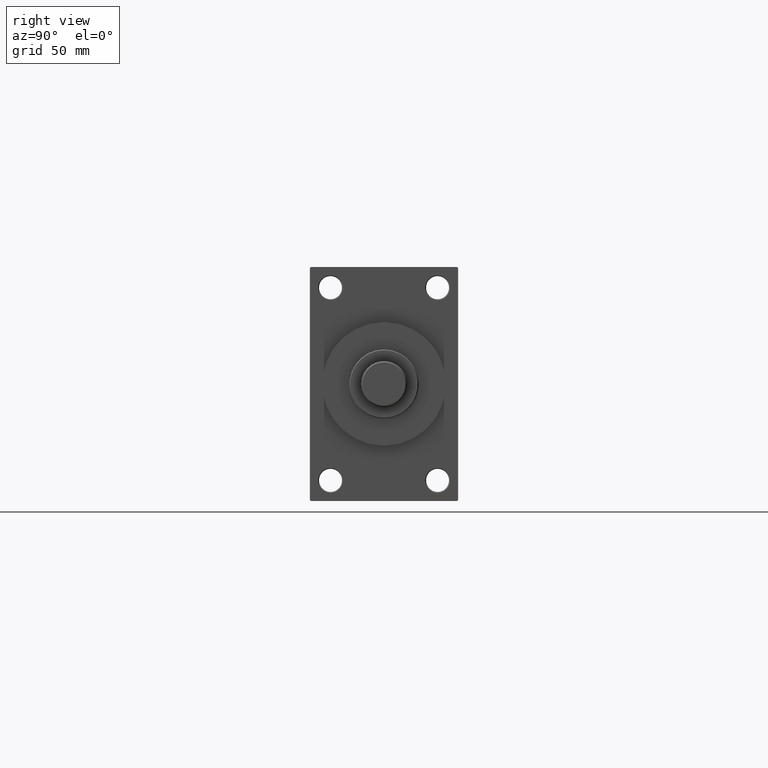
[diagram: clean part render]
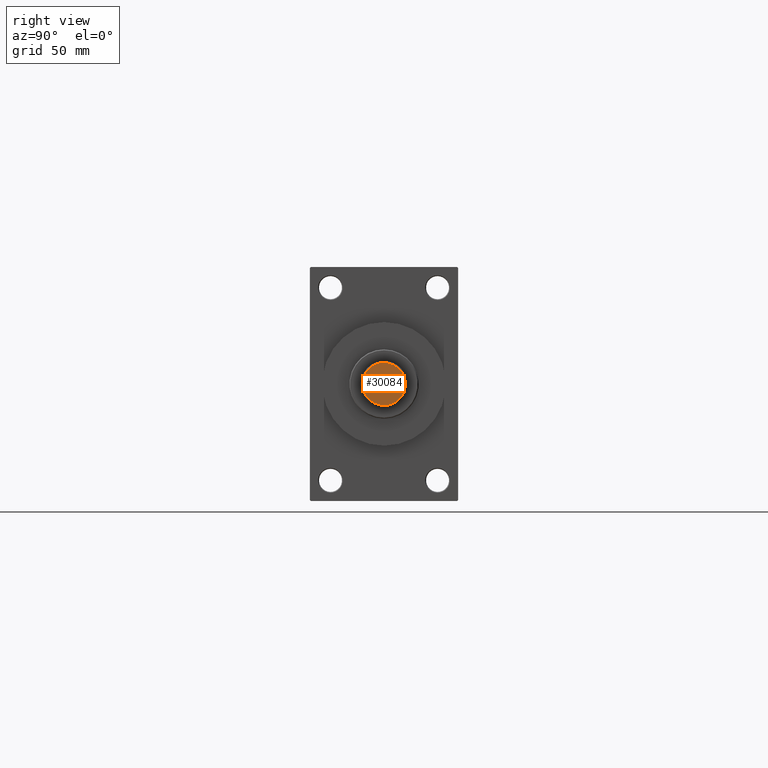
[diagram: same view with one face highlighted and labeled with its STEP entity id]
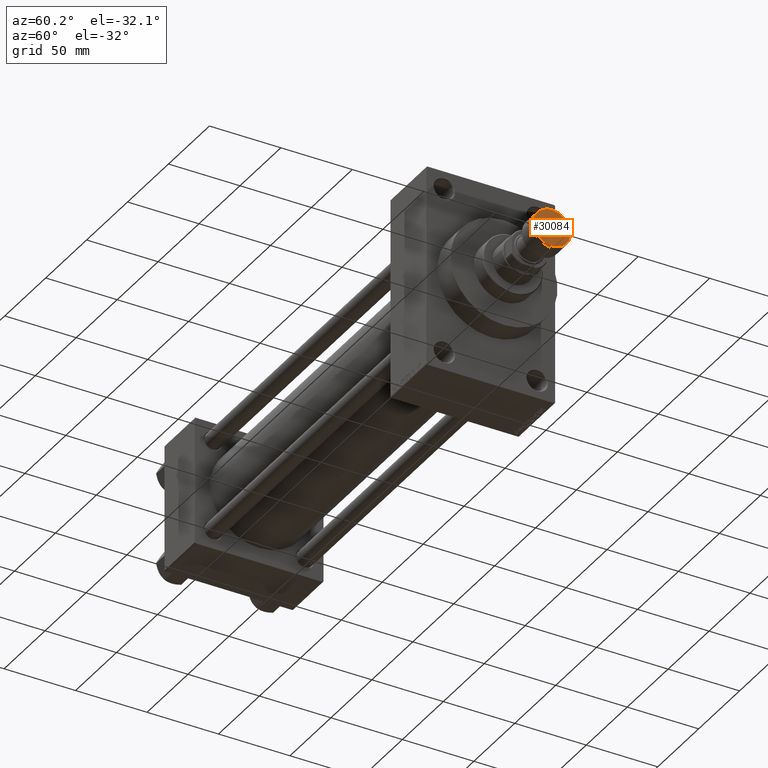
[diagram: same view with one face highlighted and labeled with its STEP entity id]
A machine part, right view. The second image highlights one B-rep face of the part: STEP entity #30084.
A second angle (auxiliary view) of the same face is appended — the face is thin or edge-on in the first view.
In plain terms, the highlighted planar face has unit normal (1, 0, 0).
Its self-contained STEP definition (entity closure, byte-faithful):
#198 = DIRECTION ( 'NONE',  ( 0.000000000000000000, 0.000000000000000000, 1.000000000000000000 ) ) ;
#1244 = EDGE_CURVE ( 'NONE', #34592, #35654, #36176, .T. ) ;
#4264 = CARTESIAN_POINT ( 'NONE',  ( 0.000000000000000000, 0.000000000000000000, 0.000000000000000000 ) ) ;
#6031 = EDGE_CURVE ( 'NONE', #35654, #34592, #16940, .T. ) ;
#6107 = DIRECTION ( 'NONE',  ( 0.000000000000000000, 0.000000000000000000, 1.000000000000000000 ) ) ;
#7360 = ORIENTED_EDGE ( 'NONE', *, *, #1244, .T. ) ;
#11827 = CARTESIAN_POINT ( 'NONE',  ( 13.00000000000000000, 0.000000000000000000, 0.000000000000000000 ) ) ;
#15240 = AXIS2_PLACEMENT_3D ( 'NONE', #24411, #6107, #23955 ) ;
#16940 = CIRCLE ( 'NONE', #31574, 13.00000000000000000 ) ;
#18476 = DIRECTION ( 'NONE',  ( 1.000000000000000000, 0.000000000000000000, -0.000000000000000000 ) ) ;
#20699 = AXIS2_PLACEMENT_3D ( 'NONE', #4264, #198, #18476 ) ;
#23955 = DIRECTION ( 'NONE',  ( 1.000000000000000000, 0.000000000000000000, 0.000000000000000000 ) ) ;
#24411 = CARTESIAN_POINT ( 'NONE',  ( 0.000000000000000000, 0.000000000000000000, 0.000000000000000000 ) ) ;
#24753 = ORIENTED_EDGE ( 'NONE', *, *, #6031, .T. ) ;
#25920 = DIRECTION ( 'NONE',  ( 1.000000000000000000, 0.000000000000000000, 0.000000000000000000 ) ) ;
#26665 = PLANE ( 'NONE',  #20699 ) ;
#29791 = FACE_OUTER_BOUND ( 'NONE', #40173, .T. ) ;
#30084 = ADVANCED_FACE ( 'NONE', ( #29791 ), #26665, .T. ) ;
#31574 = AXIS2_PLACEMENT_3D ( 'NONE', #36339, #40426, #25920 ) ;
#31973 = CARTESIAN_POINT ( 'NONE',  ( -13.00000000000000000, 1.622657008870242882E-15, 0.000000000000000000 ) ) ;
#34592 = VERTEX_POINT ( 'NONE', #31973 ) ;
#35654 = VERTEX_POINT ( 'NONE', #11827 ) ;
#36176 = CIRCLE ( 'NONE', #15240, 13.00000000000000000 ) ;
#36339 = CARTESIAN_POINT ( 'NONE',  ( 0.000000000000000000, 0.000000000000000000, 0.000000000000000000 ) ) ;
#40173 = EDGE_LOOP ( 'NONE', ( #24753, #7360 ) ) ;
#40426 = DIRECTION ( 'NONE',  ( 0.000000000000000000, 0.000000000000000000, 1.000000000000000000 ) ) ;